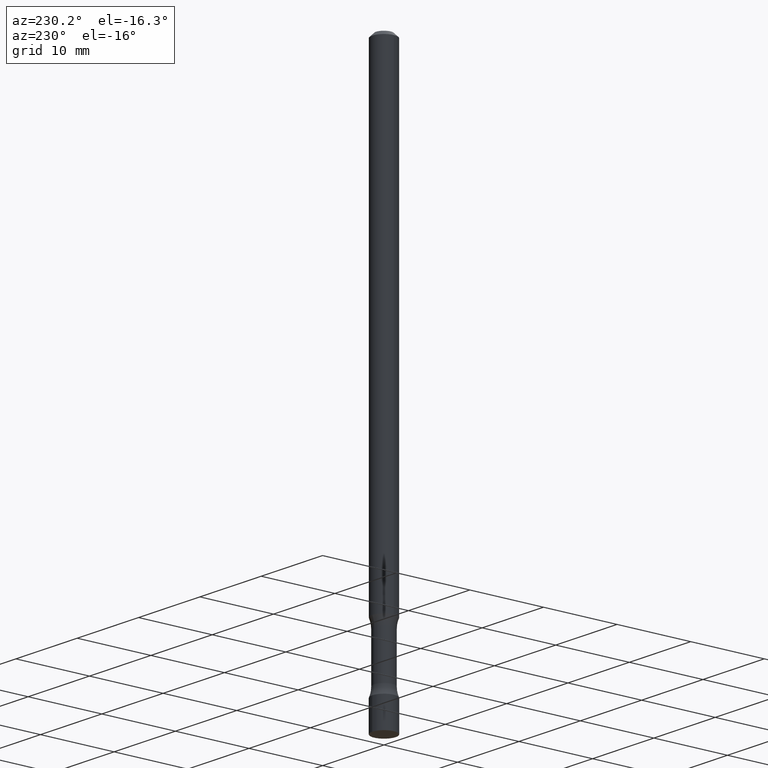
[diagram: clean part render]
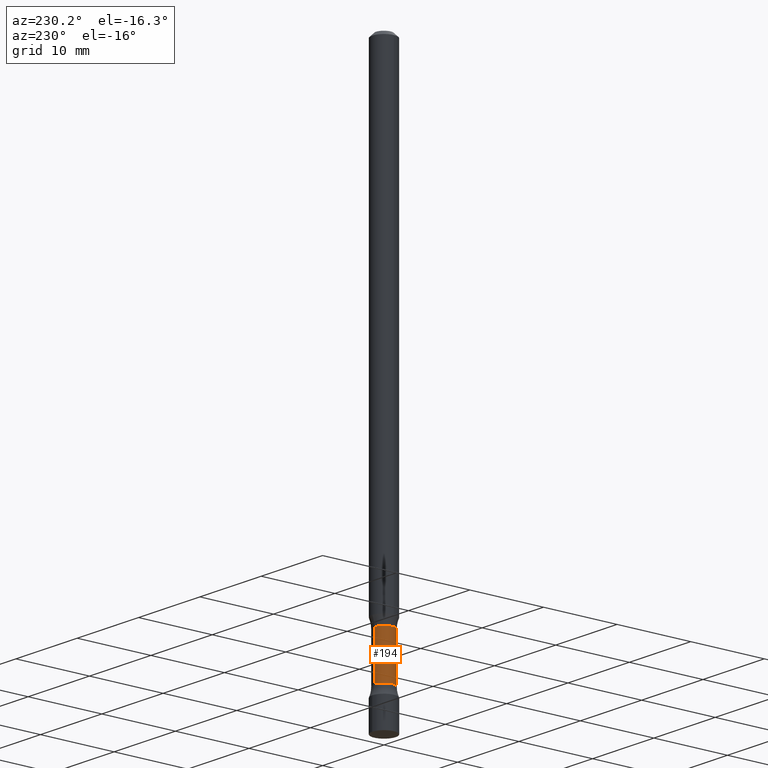
[diagram: same view with one face highlighted and labeled with its STEP entity id]
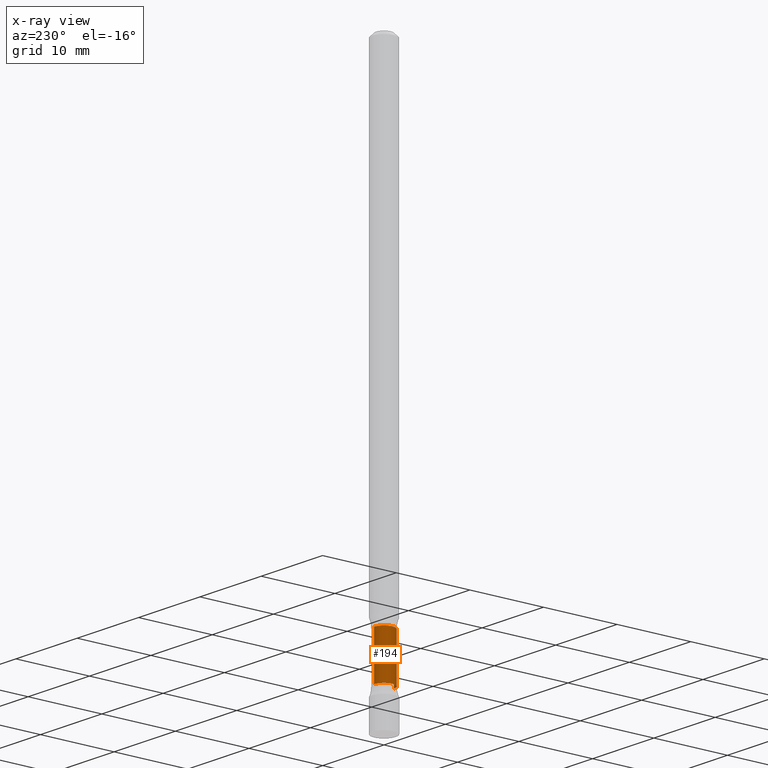
[diagram: x-ray of the same camera — body ghosted, the highlighted face saturated]
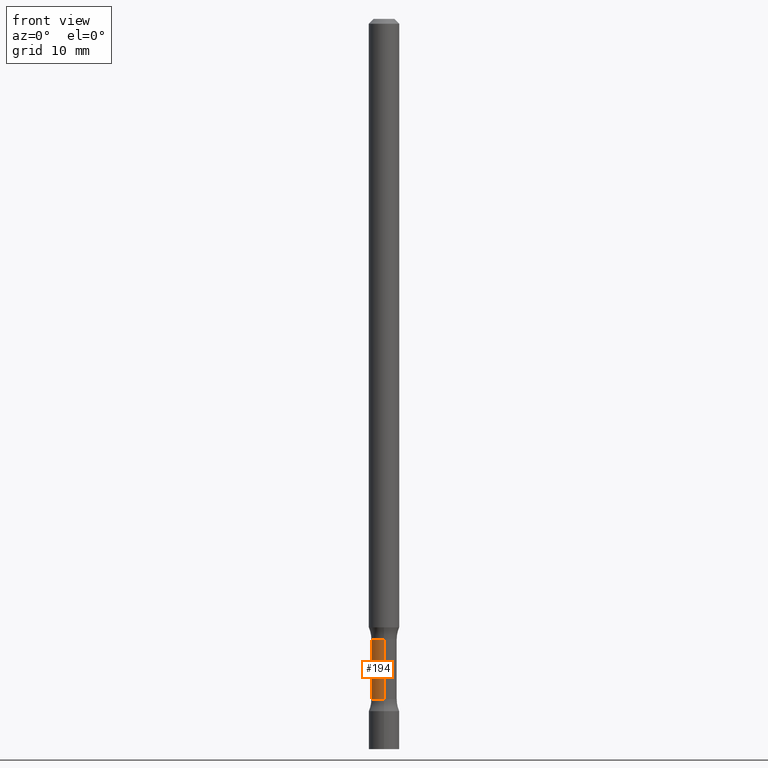
[diagram: same view with one face highlighted and labeled with its STEP entity id]
A machine part, auxiliary view. The second image highlights one B-rep face of the part: STEP entity #194.
The next image is the same camera in x-ray: the body ghosted, the highlighted face saturated — about 0% of this face is hidden behind the body in this view.
A second angle (front view) of the same face is appended — the face is thin or edge-on in the first view.
In plain terms, the highlighted cylindrical surface (edge-blend (fillet) strip) has radius 1.3335 mm, axis along (0, -0, -1).
Its self-contained STEP definition (entity closure, byte-faithful):
#12 = DIRECTION ( 'NONE',  ( 9.279497241250942749E-30, -5.664655036175374485E-15, -1.000000000000000000 ) ) ;
#27 = ORIENTED_EDGE ( 'NONE', *, *, #241, .F. ) ;
#66 = DIRECTION ( 'NONE',  ( 6.982962677686265922E-15, 1.000000000000000000, -1.040703997586390090E-14 ) ) ;
#70 = CARTESIAN_POINT ( 'NONE',  ( 6.927353170398529662E-29, -9.625230182753911430E-15, -2.794810205144336201 ) ) ;
#72 = VECTOR ( 'NONE', #12, 39.37007874015748143 ) ;
#75 = VERTEX_POINT ( 'NONE', #407 ) ;
#102 = CYLINDRICAL_SURFACE ( 'NONE', #387, 0.05249999999999951927 ) ;
#103 = DIRECTION ( 'NONE',  ( 6.982962677686265133E-15, 1.000000000000000000, -1.040703997586400819E-14 ) ) ;
#133 = FACE_OUTER_BOUND ( 'NONE', #428, .T. ) ;
#139 = DIRECTION ( 'NONE',  ( 6.982962677686265133E-15, 1.000000000000000000, -1.040703997586395454E-14 ) ) ;
#175 = EDGE_CURVE ( 'NONE', #420, #75, #327, .T. ) ;
#176 = CARTESIAN_POINT ( 'NONE',  ( -3.944786348717910241E-16, -0.05250000000000748512, -2.548989794855663682 ) ) ;
#182 = CARTESIAN_POINT ( 'NONE',  ( 6.699244188486840986E-29, -8.232742357617490292E-15, -2.548989794855664570 ) ) ;
#194 = ADVANCED_FACE ( 'NONE', ( #133 ), #102, .T. ) ;
#224 = EDGE_CURVE ( 'NONE', #337, #420, #260, .T. ) ;
#227 = DIRECTION ( 'NONE',  ( 9.279497241250942749E-30, -5.664655036175374485E-15, -1.000000000000000000 ) ) ;
#241 = EDGE_CURVE ( 'NONE', #337, #368, #494, .T. ) ;
#245 = CARTESIAN_POINT ( 'NONE',  ( 3.666055405785967063E-16, 0.05249999999998872929, -3.000000000000000888 ) ) ;
#256 = EDGE_CURVE ( 'NONE', #368, #75, #314, .T. ) ;
#260 = CIRCLE ( 'NONE', #339, 0.05249999999999925560 ) ;
#265 = ORIENTED_EDGE ( 'NONE', *, *, #256, .F. ) ;
#274 = CARTESIAN_POINT ( 'NONE',  ( 3.666055405785906912E-16, 0.05249999999999101913, -2.548989794855665014 ) ) ;
#289 = CARTESIAN_POINT ( 'NONE',  ( -3.601761448829309425E-16, -0.05250000000001030925, -2.999999999999999556 ) ) ;
#295 = CARTESIAN_POINT ( 'NONE',  ( 7.117758983928128793E-29, -1.078755958755484022E-14, -3.000000000000000444 ) ) ;
#304 = AXIS2_PLACEMENT_3D ( 'NONE', #70, #335, #66 ) ;
#314 = CIRCLE ( 'NONE', #304, 0.05249999999999978989 ) ;
#327 = LINE ( 'NONE', #245, #72 ) ;
#335 = DIRECTION ( 'NONE',  ( 9.279497241250942749E-30, -5.664655036175374485E-15, -1.000000000000000000 ) ) ;
#337 = VERTEX_POINT ( 'NONE', #176 ) ;
#339 = AXIS2_PLACEMENT_3D ( 'NONE', #182, #371, #103 ) ;
#368 = VERTEX_POINT ( 'NONE', #432 ) ;
#371 = DIRECTION ( 'NONE',  ( 9.279497241250942749E-30, -5.664655036175374485E-15, -1.000000000000000000 ) ) ;
#387 = AXIS2_PLACEMENT_3D ( 'NONE', #295, #227, #139 ) ;
#407 = CARTESIAN_POINT ( 'NONE',  ( 3.666055405785967556E-16, 0.05249999999999016564, -2.794810205144336646 ) ) ;
#410 = DIRECTION ( 'NONE',  ( 9.279497241250942749E-30, -5.664655036175374485E-15, -1.000000000000000000 ) ) ;
#420 = VERTEX_POINT ( 'NONE', #274 ) ;
#428 = EDGE_LOOP ( 'NONE', ( #27, #461, #463, #265 ) ) ;
#432 = CARTESIAN_POINT ( 'NONE',  ( -3.944786348717937851E-16, -0.05250000000000940026, -2.794810205144335757 ) ) ;
#459 = VECTOR ( 'NONE', #410, 39.37007874015748143 ) ;
#461 = ORIENTED_EDGE ( 'NONE', *, *, #224, .T. ) ;
#463 = ORIENTED_EDGE ( 'NONE', *, *, #175, .T. ) ;
#494 = LINE ( 'NONE', #289, #459 ) ;